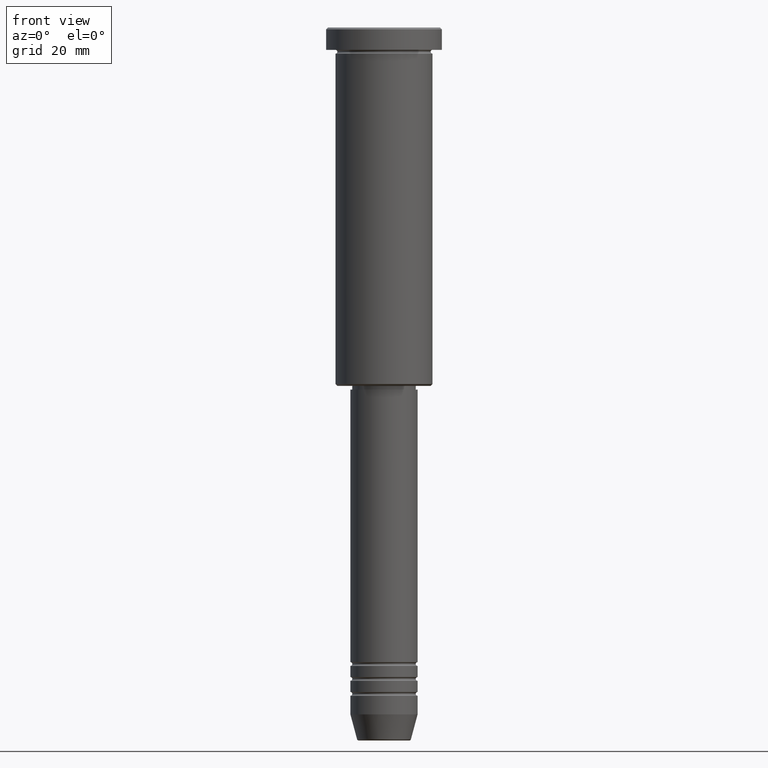
[diagram: clean part render]
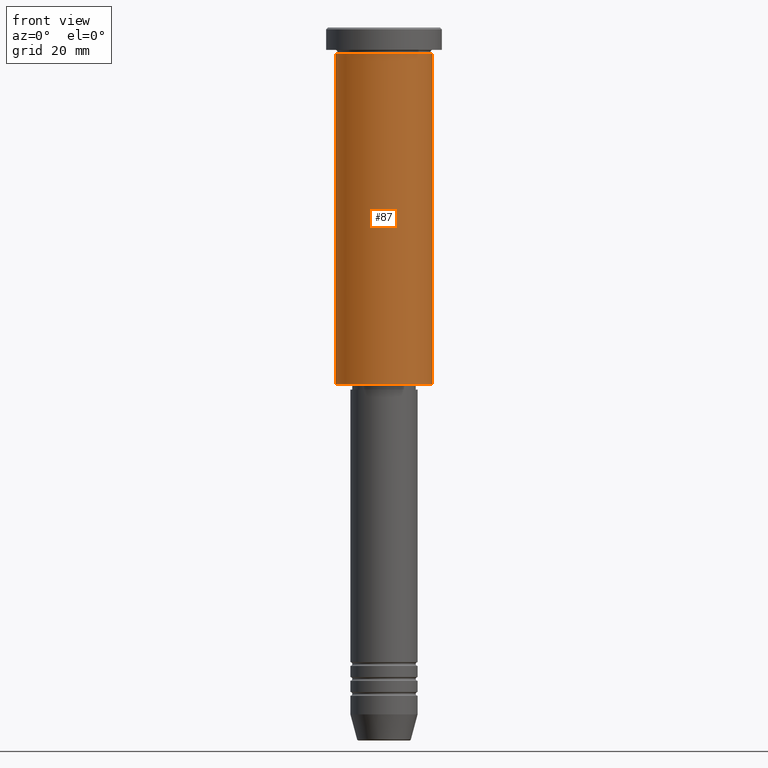
[diagram: same view with one face highlighted and labeled with its STEP entity id]
A machine part, front view. The second image highlights one B-rep face of the part: STEP entity #87.
In plain terms, the highlighted cylindrical surface (partial cylindrical patch) has radius 13 mm, axis along (-0, -0, 1).
Its self-contained STEP definition (entity closure, byte-faithful):
#15 = CARTESIAN_POINT ( 'NONE',  ( 13.00000000000000178, 0.000000000000000000, 0.000000000000000000 ) ) ;
#87 = ADVANCED_FACE ( 'NONE', ( #400 ), #487, .T. ) ;
#178 = AXIS2_PLACEMENT_3D ( 'NONE', #440, #424, #434 ) ;
#201 = LINE ( 'NONE', #15, #969 ) ;
#236 = ORIENTED_EDGE ( 'NONE', *, *, #1156, .T. ) ;
#259 = DIRECTION ( 'NONE',  ( -0.000000000000000000, -0.000000000000000000, 1.000000000000000000 ) ) ;
#307 = EDGE_CURVE ( 'NONE', #712, #756, #728, .T. ) ;
#308 = ORIENTED_EDGE ( 'NONE', *, *, #880, .T. ) ;
#326 = CIRCLE ( 'NONE', #178, 13.00000000000000178 ) ;
#374 = DIRECTION ( 'NONE',  ( 1.000000000000000000, 0.000000000000000000, 0.000000000000000000 ) ) ;
#378 = ORIENTED_EDGE ( 'NONE', *, *, #856, .F. ) ;
#395 = EDGE_LOOP ( 'NONE', ( #1026, #236, #308, #378 ) ) ;
#400 = FACE_OUTER_BOUND ( 'NONE', #395, .T. ) ;
#424 = DIRECTION ( 'NONE',  ( -0.000000000000000000, -0.000000000000000000, 1.000000000000000000 ) ) ;
#434 = DIRECTION ( 'NONE',  ( -1.000000000000000000, 0.000000000000000000, 0.000000000000000000 ) ) ;
#440 = CARTESIAN_POINT ( 'NONE',  ( 0.000000000000000000, 0.000000000000000000, -95.50000000000000000 ) ) ;
#480 = VECTOR ( 'NONE', #259, 1000.000000000000000 ) ;
#487 = CYLINDRICAL_SURFACE ( 'NONE', #761, 13.00000000000000178 ) ;
#517 = CIRCLE ( 'NONE', #1042, 13.00000000000000178 ) ;
#556 = DIRECTION ( 'NONE',  ( -0.000000000000000000, -0.000000000000000000, 1.000000000000000000 ) ) ;
#567 = VERTEX_POINT ( 'NONE', #1064 ) ;
#617 = CARTESIAN_POINT ( 'NONE',  ( -13.00000000000000178, 1.592040838891559293E-15, -95.50000000000000000 ) ) ;
#629 = CARTESIAN_POINT ( 'NONE',  ( -13.00000000000000178, 1.592040838891559293E-15, 0.000000000000000000 ) ) ;
#653 = CARTESIAN_POINT ( 'NONE',  ( 0.000000000000000000, 0.000000000000000000, -6.999999999999995559 ) ) ;
#712 = VERTEX_POINT ( 'NONE', #617 ) ;
#726 = VERTEX_POINT ( 'NONE', #1173 ) ;
#728 = LINE ( 'NONE', #629, #480 ) ;
#755 = CARTESIAN_POINT ( 'NONE',  ( 0.000000000000000000, 0.000000000000000000, 0.000000000000000000 ) ) ;
#756 = VERTEX_POINT ( 'NONE', #1098 ) ;
#761 = AXIS2_PLACEMENT_3D ( 'NONE', #755, #1019, #774 ) ;
#774 = DIRECTION ( 'NONE',  ( 1.000000000000000000, 0.000000000000000000, 0.000000000000000000 ) ) ;
#856 = EDGE_CURVE ( 'NONE', #756, #567, #517, .T. ) ;
#880 = EDGE_CURVE ( 'NONE', #726, #567, #201, .T. ) ;
#969 = VECTOR ( 'NONE', #556, 1000.000000000000000 ) ;
#1019 = DIRECTION ( 'NONE',  ( -0.000000000000000000, -0.000000000000000000, 1.000000000000000000 ) ) ;
#1026 = ORIENTED_EDGE ( 'NONE', *, *, #307, .F. ) ;
#1031 = DIRECTION ( 'NONE',  ( -0.000000000000000000, -0.000000000000000000, 1.000000000000000000 ) ) ;
#1042 = AXIS2_PLACEMENT_3D ( 'NONE', #653, #1031, #374 ) ;
#1064 = CARTESIAN_POINT ( 'NONE',  ( 13.00000000000000178, 0.000000000000000000, -6.999999999999995559 ) ) ;
#1098 = CARTESIAN_POINT ( 'NONE',  ( -13.00000000000000178, 1.592040838891559293E-15, -6.999999999999995559 ) ) ;
#1156 = EDGE_CURVE ( 'NONE', #712, #726, #326, .T. ) ;
#1173 = CARTESIAN_POINT ( 'NONE',  ( 13.00000000000000178, 0.000000000000000000, -95.50000000000000000 ) ) ;